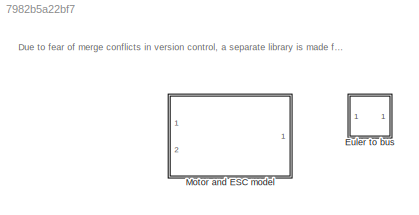
MODEL slx_7982b5a22bf7
KIND library
CONFIG AbsTol = auto
CONFIG FixedStep = auto
CONFIG MaxStep = auto
CONFIG MinStep = auto
CONFIG RelTol = 1e-3
CONFIG SampleTimeConstraint = Unconstrained
CONFIG Solver = ode45
CONFIG SolverMode = Auto
CONFIG SolverName = ode45
CONFIG StartTime = 0.0
CONFIG StopTime = 10.0
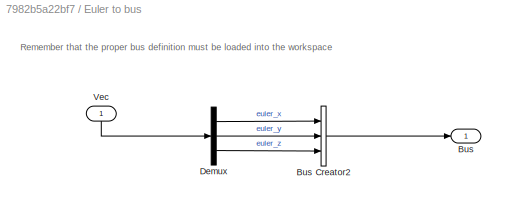
BLOCK [SubSystem] Euler to bus
  Ports = [1, 1]
  RequestExecContextInheritance = off
  Variant = off
BLOCK [Outport] Euler to bus/Bus
  IconDisplay = Port number
BLOCK [BusCreator] Euler to bus/Bus Creator2
  DisplayOption = bar
  InheritFromInputs = on
  Inputs = 'euler_x','euler_y','euler_z'
  OutDataTypeStr = Bus: euler
  Ports = [3, 1]
BLOCK [Demux] Euler to bus/Demux
  DisplayOption = bar
  Outputs = 3
  Ports = [1, 3]
BLOCK [Inport] Euler to bus/Vec
  IconDisplay = Port number
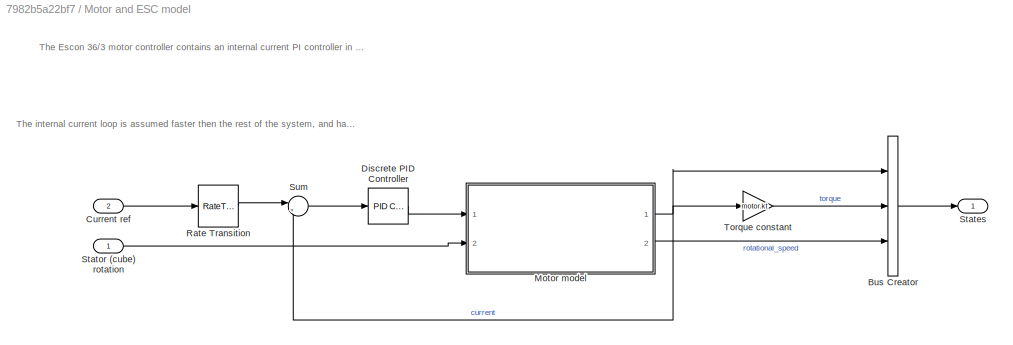
BLOCK [SubSystem] Motor and ESC model
  Ports = [2, 1]
  RequestExecContextInheritance = off
  Variant = off
BLOCK [BusCreator] Motor and ESC model/Bus Creator
  DisplayOption = bar
  InheritFromInputs = on
  Inputs = 'current','torque','rotational_speed'
  OutDataTypeStr = Bus: motorStates
  Ports = [3, 1]
BLOCK [Inport] Motor and ESC model/Current ref
  IconDisplay = Port number
  Port = 2
BLOCK [Reference] Motor and ESC model/Discrete PID Controller  REF=simulink/Continuous/PID Controller
  Ports = [1, 1]
  SourceBlock = simulink/Continuous/PID Controller
  SourceType = PID 1dof
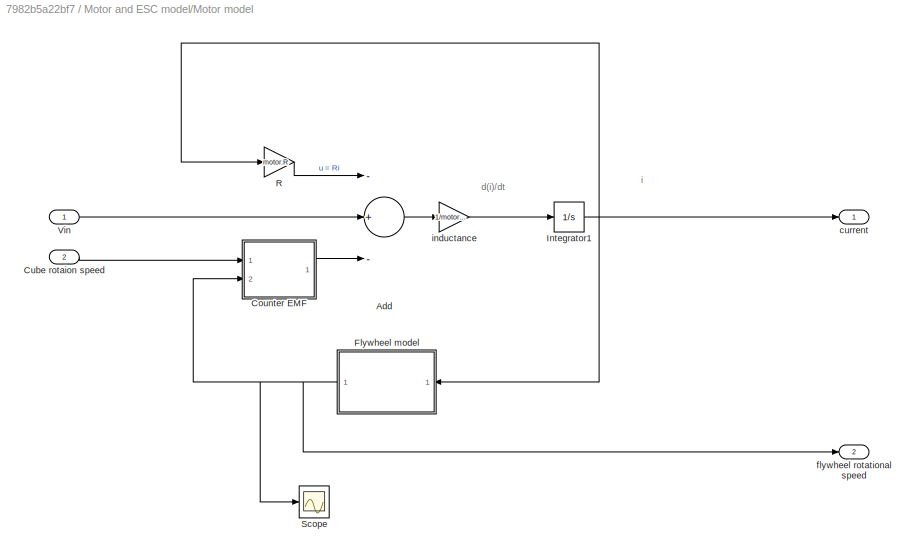
BLOCK [SubSystem] Motor and ESC model/Motor model
  Ports = [2, 2]
  RequestExecContextInheritance = off
  Variant = off
BLOCK [Sum] Motor and ESC model/Motor model/Add
  InputSameDT = off
  Inputs = -+-
  OutDataTypeStr = Inherit: Inherit via internal rule
  Ports = [3, 1]
  SaturateOnIntegerOverflow = off
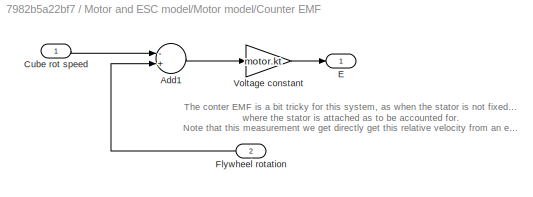
BLOCK [SubSystem] Motor and ESC model/Motor model/Counter EMF
  Ports = [2, 1]
  RequestExecContextInheritance = off
  Variant = off
BLOCK [Sum] Motor and ESC model/Motor model/Counter EMF/Add1
  InputSameDT = off
  Inputs = -+
  OutDataTypeStr = Inherit: Inherit via internal rule
  Ports = [2, 1]
  SaturateOnIntegerOverflow = off
BLOCK [Inport] Motor and ESC model/Motor model/Counter EMF/Cube rot speed
  IconDisplay = Port number
BLOCK [Outport] Motor and ESC model/Motor model/Counter EMF/E
  IconDisplay = Port number
BLOCK [Inport] Motor and ESC model/Motor model/Counter EMF/Flywheel rotation
  IconDisplay = Port number
  Port = 2
BLOCK [Gain] Motor and ESC model/Motor model/Counter EMF/Voltage constant
  Gain = motor.kt
  OutDataTypeStr = Inherit: Inherit via internal rule
  ParamDataTypeStr = Inherit: Inherit via internal rule
  SaturateOnIntegerOverflow = off
BLOCK [Inport] Motor and ESC model/Motor model/Cube rotaion speed
  IconDisplay = Port number
  Port = 2
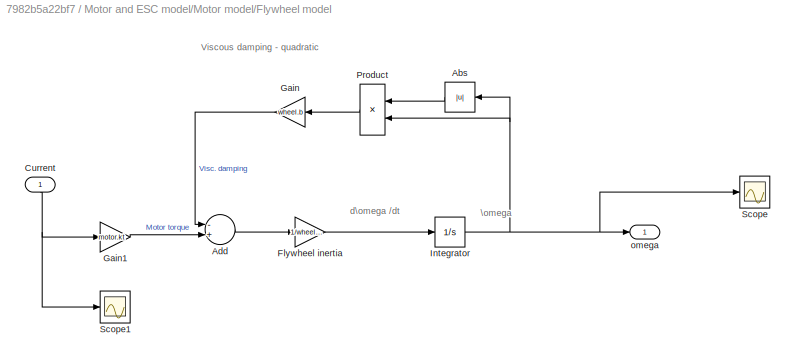
BLOCK [SubSystem] Motor and ESC model/Motor model/Flywheel model
  Ports = [1, 1]
  RequestExecContextInheritance = off
  Variant = off
BLOCK [Abs] Motor and ESC model/Motor model/Flywheel model/Abs
  SaturateOnIntegerOverflow = off
BLOCK [Sum] Motor and ESC model/Motor model/Flywheel model/Add
  InputSameDT = off
  Inputs = -+
  OutDataTypeStr = Inherit: Inherit via internal rule
  Ports = [2, 1]
  SaturateOnIntegerOverflow = off
BLOCK [Inport] Motor and ESC model/Motor model/Flywheel model/Current
  IconDisplay = Port number
BLOCK [Gain] Motor and ESC model/Motor model/Flywheel model/Flywheel inertia
  Gain = 1/wheel.J
  OutDataTypeStr = Inherit: Inherit via internal rule
  ParamDataTypeStr = Inherit: Inherit via internal rule
  SaturateOnIntegerOverflow = off
BLOCK [Gain] Motor and ESC model/Motor model/Flywheel model/Gain
  Gain = wheel.b
  OutDataTypeStr = Inherit: Inherit via internal rule
  ParamDataTypeStr = Inherit: Inherit via internal rule
  SaturateOnIntegerOverflow = off
BLOCK [Gain] Motor and ESC model/Motor model/Flywheel model/Gain1
  Gain = motor.kt
  OutDataTypeStr = Inherit: Inherit via internal rule
  ParamDataTypeStr = Inherit: Inherit via internal rule
  SaturateOnIntegerOverflow = off
BLOCK [Integrator] Motor and ESC model/Motor model/Flywheel model/Integrator
  Ports = [1, 1]
BLOCK [Product] Motor and ESC model/Motor model/Flywheel model/Product
  InputSameDT = off
  OutDataTypeStr = Inherit: Inherit via internal rule
  Ports = [2, 1]
  RndMeth = Floor
  SaturateOnIntegerOverflow = off
BLOCK [Scope] Motor and ESC model/Motor model/Flywheel model/Scope
  Ports = [1]
  ScopeSpecificationString = Simulink.scopes.TimeScopeBlockCfg('CurrentConfiguration', extmgr.ConfigurationSet(extmgr.Configuration('Core','General UI',true),extmgr.Configuration('Core','Source UI',true),extmgr.Configuration('Sources','WiredSimulink',true,'DataLoggingVariableName','ScopeData2'),extmgr.Configuration('Visuals','Time Domain',true,'SerializedDisplays',{struct('MinYLimReal','-358.58902','MaxYLimReal','39.84322','Y...<+1454ch>
BLOCK [Scope] Motor and ESC model/Motor model/Flywheel model/Scope1
  Ports = [1]
  ScopeSpecificationString = Simulink.scopes.TimeScopeBlockCfg('CurrentConfiguration', extmgr.ConfigurationSet(extmgr.Configuration('Core','General UI',true),extmgr.Configuration('Core','Source UI',true),extmgr.Configuration('Sources','WiredSimulink',true,'DataLoggingVariableName','ScopeData4'),extmgr.Configuration('Visuals','Time Domain',true,'SerializedDisplays',{struct('MinYLimReal','-10.31533','MaxYLimReal','3.04782','YLa...<+1443ch>
BLOCK [Outport] Motor and ESC model/Motor model/Flywheel model/omega
  IconDisplay = Port number
BLOCK [Integrator] Motor and ESC model/Motor model/Integrator1
  Ports = [1, 1]
BLOCK [Gain] Motor and ESC model/Motor model/R
  Gain = motor.R
  OutDataTypeStr = Inherit: Inherit via internal rule
  ParamDataTypeStr = Inherit: Inherit via internal rule
  SaturateOnIntegerOverflow = off
BLOCK [Scope] Motor and ESC model/Motor model/Scope
  Ports = [1]
  ScopeSpecificationString = Simulink.scopes.TimeScopeBlockCfg('CurrentConfiguration', extmgr.ConfigurationSet(extmgr.Configuration('Core','General UI',true),extmgr.Configuration('Core','Source UI',true),extmgr.Configuration('Sources','WiredSimulink',true,'DataLoggingVariableName','ScopeData3'),extmgr.Configuration('Visuals','Time Domain',true,'SerializedDisplays',{struct('MinYLimReal','-333.10723','MaxYLimReal','-168.25037',...<+1408ch>
BLOCK [Inport] Motor and ESC model/Motor model/Vin
  IconDisplay = Port number
BLOCK [Outport] Motor and ESC model/Motor model/current
  IconDisplay = Port number
BLOCK [Outport] Motor and ESC model/Motor model/flywheel rotational speed
  IconDisplay = Port number
  Port = 2
BLOCK [Gain] Motor and ESC model/Motor model/inductance
  Gain = 1/motor.L
  OutDataTypeStr = Inherit: Inherit via internal rule
  ParamDataTypeStr = Inherit: Inherit via internal rule
  SaturateOnIntegerOverflow = off
BLOCK [RateTransition] Motor and ESC model/Rate Transition
  OutPortSampleTime = 0.001
BLOCK [Outport] Motor and ESC model/States 
  IconDisplay = Port number
  OutDataTypeStr = Bus: motorStates
BLOCK [Inport] Motor and ESC model/Stator (cube) rotation
  IconDisplay = Port number
BLOCK [Sum] Motor and ESC model/Sum
  IconShape = round
  InputSameDT = off
  Inputs = |+-
  OutDataTypeStr = Inherit: Inherit via internal rule
  Ports = [2, 1]
  SaturateOnIntegerOverflow = off
BLOCK [Gain] Motor and ESC model/Torque constant
  Gain = motor.kt
  OutDataTypeStr = Inherit: Inherit via internal rule
  ParamDataTypeStr = Inherit: Inherit via internal rule
  SaturateOnIntegerOverflow = off
ANNOTATION (root): Due to fear of merge conflicts in version control, a separate library is made for simulation
ANNOTATION Euler to bus: Remember that the proper bus definition must be loaded into the workspace
ANNOTATION Motor and ESC model: The Escon 36/3 motor controller contains an internal current PI controller in one of the modes.
ANNOTATION Motor and ESC model: The internal current loop is assumed faster then the rest of the system, and has another sampling rate therefore
ANNOTATION Motor and ESC model/Motor model: d(i)/dt
ANNOTATION Motor and ESC model/Motor model: i
ANNOTATION Motor and ESC model/Motor model/Counter EMF: The conter EMF is a bit tricky for this system, as when the stator is not fixed but moves with the cube. Therefore the rotation of the plane where the stator is attached as to be accounted for. Note that this measurement we get directly get this relative velocity from an encoder.
ANNOTATION Motor and ESC model/Motor model/Flywheel model: Viscous damping - quadratic
ANNOTATION Motor and ESC model/Motor model/Flywheel model: \omega
ANNOTATION Motor and ESC model/Motor model/Flywheel model: d\omega /dt
LINE Euler to bus/Bus Creator2:1 -> Euler to bus/Bus:1
LINE Euler to bus/Demux:1 -> Euler to bus/Bus Creator2:1
LINE Euler to bus/Demux:2 -> Euler to bus/Bus Creator2:2
LINE Euler to bus/Demux:3 -> Euler to bus/Bus Creator2:3
LINE Euler to bus/Vec:1 -> Euler to bus/Demux:1
LINE Motor and ESC model/Bus Creator:1 -> Motor and ESC model/States :1
LINE Motor and ESC model/Current ref:1 -> Motor and ESC model/Rate Transition:1
LINE Motor and ESC model/Discrete PID Controller:1 -> Motor and ESC model/Motor model:1
LINE Motor and ESC model/Motor model/Add:1 -> Motor and ESC model/Motor model/inductance:1
LINE Motor and ESC model/Motor model/Counter EMF/Add1:1 -> Motor and ESC model/Motor model/Counter EMF/Voltage constant:1
LINE Motor and ESC model/Motor model/Counter EMF/Cube rot speed:1 -> Motor and ESC model/Motor model/Counter EMF/Add1:1
LINE Motor and ESC model/Motor model/Counter EMF/Flywheel rotation:1 -> Motor and ESC model/Motor model/Counter EMF/Add1:2
LINE Motor and ESC model/Motor model/Counter EMF/Voltage constant:1 -> Motor and ESC model/Motor model/Counter EMF/E:1
LINE Motor and ESC model/Motor model/Counter EMF:1 -> Motor and ESC model/Motor model/Add:3
LINE Motor and ESC model/Motor model/Cube rotaion speed:1 -> Motor and ESC model/Motor model/Counter EMF:1
LINE Motor and ESC model/Motor model/Flywheel model/Abs:1 -> Motor and ESC model/Motor model/Flywheel model/Product:1
LINE Motor and ESC model/Motor model/Flywheel model/Add:1 -> Motor and ESC model/Motor model/Flywheel model/Flywheel inertia:1
NET Motor and ESC model/Motor model/Flywheel model/Current:1 -> Motor and ESC model/Motor model/Flywheel model/Gain1:1, Motor and ESC model/Motor model/Flywheel model/Scope1:1
LINE Motor and ESC model/Motor model/Flywheel model/Flywheel inertia:1 -> Motor and ESC model/Motor model/Flywheel model/Integrator:1
LINE Motor and ESC model/Motor model/Flywheel model/Gain1:1 -> Motor and ESC model/Motor model/Flywheel model/Add:2
LINE Motor and ESC model/Motor model/Flywheel model/Gain:1 -> Motor and ESC model/Motor model/Flywheel model/Add:1
NET Motor and ESC model/Motor model/Flywheel model/Integrator:1 -> Motor and ESC model/Motor model/Flywheel model/Abs:1, Motor and ESC model/Motor model/Flywheel model/Product:2, Motor and ESC model/Motor model/Flywheel model/Scope:1, Motor and ESC model/Motor model/Flywheel model/omega:1
LINE Motor and ESC model/Motor model/Flywheel model/Product:1 -> Motor and ESC model/Motor model/Flywheel model/Gain:1
NET Motor and ESC model/Motor model/Flywheel model:1 -> Motor and ESC model/Motor model/Counter EMF:2, Motor and ESC model/Motor model/Scope:1, Motor and ESC model/Motor model/flywheel rotational speed:1
NET Motor and ESC model/Motor model/Integrator1:1 -> Motor and ESC model/Motor model/Flywheel model:1, Motor and ESC model/Motor model/R:1, Motor and ESC model/Motor model/current:1
LINE Motor and ESC model/Motor model/R:1 -> Motor and ESC model/Motor model/Add:1
LINE Motor and ESC model/Motor model/Vin:1 -> Motor and ESC model/Motor model/Add:2
LINE Motor and ESC model/Motor model/inductance:1 -> Motor and ESC model/Motor model/Integrator1:1
NET Motor and ESC model/Motor model:1 -> Motor and ESC model/Bus Creator:1, Motor and ESC model/Sum:2, Motor and ESC model/Torque constant:1
LINE Motor and ESC model/Motor model:2 -> Motor and ESC model/Bus Creator:3
LINE Motor and ESC model/Rate Transition:1 -> Motor and ESC model/Sum:1
LINE Motor and ESC model/Stator (cube) rotation:1 -> Motor and ESC model/Motor model:2
LINE Motor and ESC model/Sum:1 -> Motor and ESC model/Discrete PID Controller:1
LINE Motor and ESC model/Torque constant:1 -> Motor and ESC model/Bus Creator:2
note: NET lines group one-source signal fan-out (src -> all destinations, sorted); 1:1 wires keep LINE
